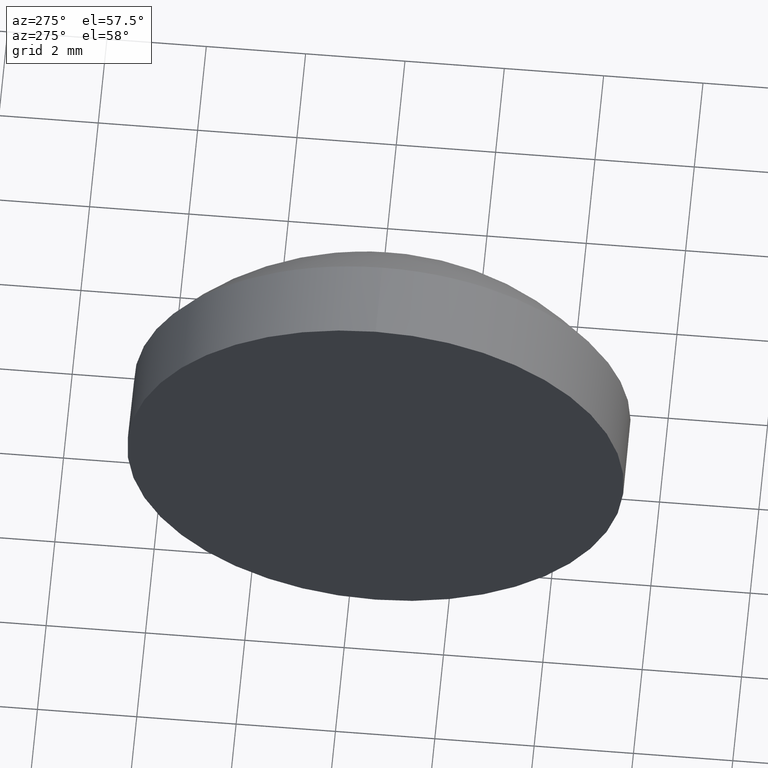
[diagram: clean part render]
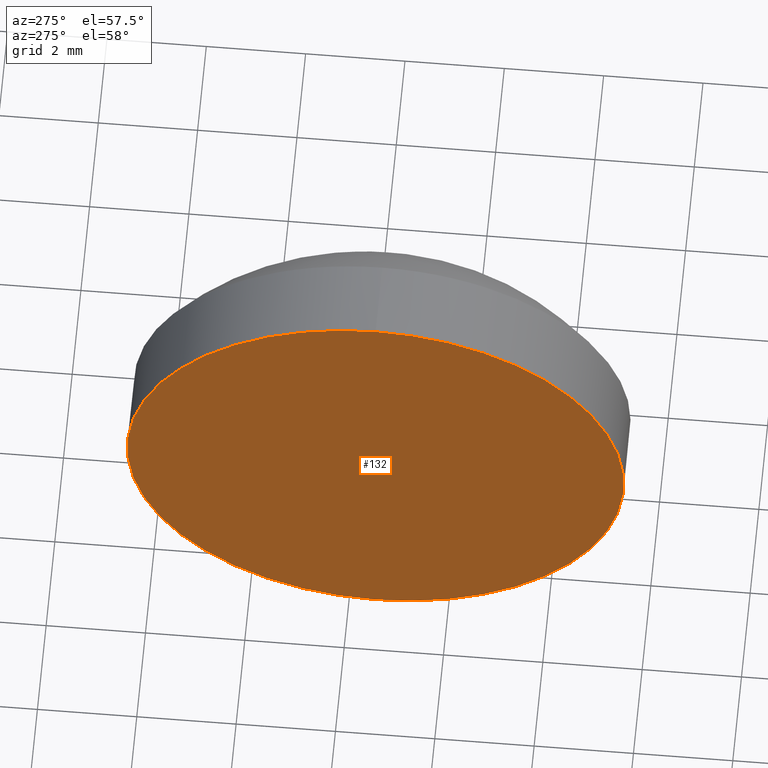
[diagram: same view with one face highlighted and labeled with its STEP entity id]
A machine part, auxiliary view. The second image highlights one B-rep face of the part: STEP entity #132.
In plain terms, the highlighted planar face has unit normal (1, 0, 0).
Its self-contained STEP definition (entity closure, byte-faithful):
#10 = FACE_OUTER_BOUND ( 'NONE', #123, .T. ) ;
#22 = VERTEX_POINT ( 'NONE', #172 ) ;
#24 = DIRECTION ( 'NONE',  ( 0.0000000000000000000, 0.0000000000000000000, -1.000000000000000000 ) ) ;
#32 = ORIENTED_EDGE ( 'NONE', *, *, #102, .T. ) ;
#38 = DIRECTION ( 'NONE',  ( -1.000000000000000000, -0.0000000000000000000, -0.0000000000000000000 ) ) ;
#46 = EDGE_CURVE ( 'NONE', #57, #22, #49, .T. ) ;
#49 = CIRCLE ( 'NONE', #178, 4.999999999999997300 ) ;
#56 = CARTESIAN_POINT ( 'NONE',  ( 423.0513353116466500, -26.53983811112431500, 0.0000000000000000000 ) ) ;
#57 = VERTEX_POINT ( 'NONE', #122 ) ;
#66 = PLANE ( 'NONE',  #143 ) ;
#72 = CIRCLE ( 'NONE', #88, 4.999999999999997300 ) ;
#80 = DIRECTION ( 'NONE',  ( 0.0000000000000000000, 0.0000000000000000000, 1.000000000000000000 ) ) ;
#81 = DIRECTION ( 'NONE',  ( -1.000000000000000000, -0.0000000000000000000, -0.0000000000000000000 ) ) ;
#88 = AXIS2_PLACEMENT_3D ( 'NONE', #56, #38, #136 ) ;
#90 = CARTESIAN_POINT ( 'NONE',  ( 423.0513353116466500, -26.53983811112431500, 0.0000000000000000000 ) ) ;
#91 = ORIENTED_EDGE ( 'NONE', *, *, #46, .T. ) ;
#102 = EDGE_CURVE ( 'NONE', #22, #57, #72, .T. ) ;
#106 = DIRECTION ( 'NONE',  ( 1.000000000000000000, 0.0000000000000000000, 0.0000000000000000000 ) ) ;
#122 = CARTESIAN_POINT ( 'NONE',  ( 423.0513353116466500, -26.53983811112431500, -4.999999999999997300 ) ) ;
#123 = EDGE_LOOP ( 'NONE', ( #32, #91 ) ) ;
#132 = ADVANCED_FACE ( 'NONE', ( #10 ), #66, .F. ) ;
#136 = DIRECTION ( 'NONE',  ( 0.0000000000000000000, 0.0000000000000000000, 1.000000000000000000 ) ) ;
#143 = AXIS2_PLACEMENT_3D ( 'NONE', #90, #106, #24 ) ;
#172 = CARTESIAN_POINT ( 'NONE',  ( 423.0513353116466500, -26.53983811112431500, 4.999999999999997300 ) ) ;
#175 = CARTESIAN_POINT ( 'NONE',  ( 423.0513353116466500, -26.53983811112431500, 0.0000000000000000000 ) ) ;
#178 = AXIS2_PLACEMENT_3D ( 'NONE', #175, #81, #80 ) ;